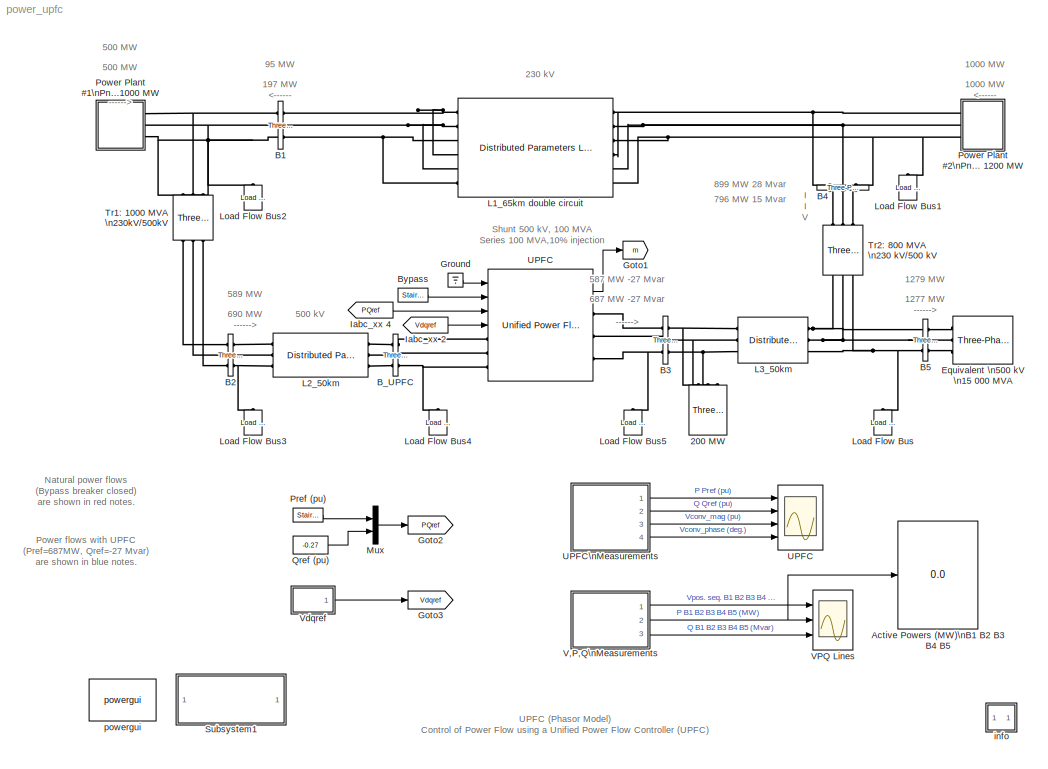
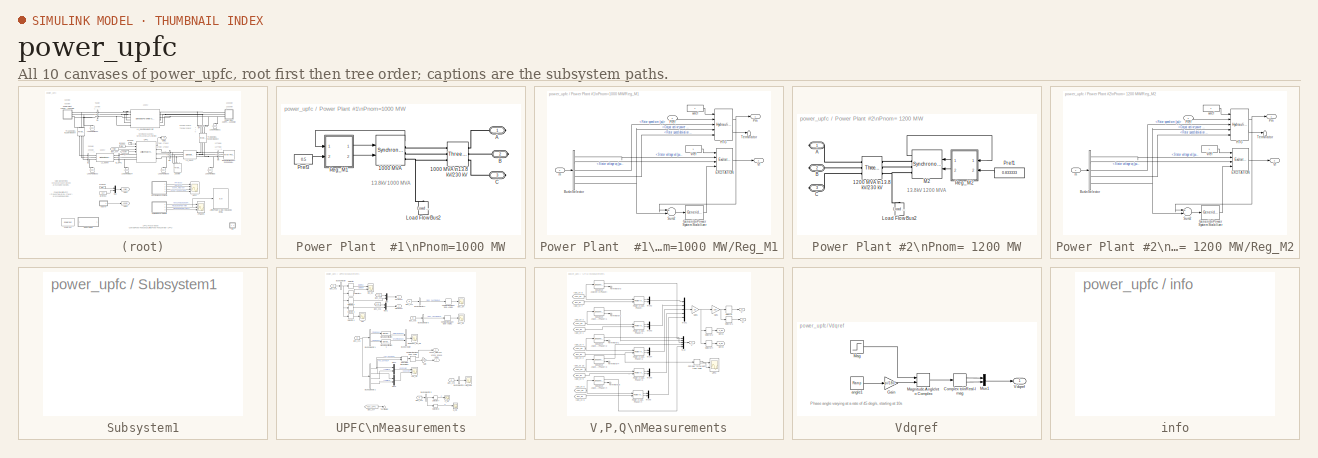
[diagram: thumbnail index - all 10 canvases of the model, root first then tree order]
MODEL power_upfc
KIND model
BLOCK [Reference] 200 MW  REF=powerlib/Elements/Three-Phase\nParallel RLC Load
  ActivePower = 2e+008
  AttributesFormatString = \\n
  CapacitivePower = 0
  Configuration = Y (grounded)
  InductivePower = 0
  LConnTagsString = A|B|C
  LoadType = constant Z
  Measurements = None
  NominalFrequency = 60
  NominalVoltage = 500e3
  Ports = [0, 0, 0, 0, 0, 3]
  SID = 1
  SourceBlock = powerlib/Elements/Three-Phase\nParallel RLC Load
  SourceType = Three-Phase Parallel RLC Load
BLOCK [Display] Active Powers (MW)\nB1 B2 B3 B4 B5
  Decimation = 1
  Ports = [1]
  SID = 2
  SampleTime = 0.1
BLOCK [Reference] B1  REF=powerlib/Measurements/Three-Phase\nV-I Measurement
  CurrentMeasurement = yes
  Ipu = on
  LabelI = Iabc_B1
  LabelV = Vabc_B1
  OutputType = Complex
  PSBequivalent = 0
  Pbase = 100e6
  PhasorSimulation = on
  Ports = [0, 0, 0, 0, 0, 3, 3]
  SID = 3
  SetLabelI = on
  SetLabelV = on
  SourceBlock = powerlib/Measurements/Three-Phase\nV-I Measurement
  SourceType = Three-Phase VI Measurement
  Vbase = 230e3
  VoltageMeasurement = phase-to-ground
  Vpu = on
  VpuLL = off
BLOCK [Reference] B2  REF=powerlib/Measurements/Three-Phase\nV-I Measurement
  CurrentMeasurement = yes
  Ipu = on
  LabelI = Iabc_B2
  LabelV = Vabc_B2
  OutputType = Complex
  PSBequivalent = 0
  Pbase = 100e6
  PhasorSimulation = on
  Ports = [0, 0, 0, 0, 0, 3, 3]
  SID = 4
  SetLabelI = on
  SetLabelV = on
  SourceBlock = powerlib/Measurements/Three-Phase\nV-I Measurement
  SourceType = Three-Phase VI Measurement
  Vbase = 500e3
  VoltageMeasurement = phase-to-ground
  Vpu = on
  VpuLL = off
BLOCK [Reference] B3  REF=powerlib/Measurements/Three-Phase\nV-I Measurement
  CurrentMeasurement = yes
  Ipu = on
  LabelI = Iabc_B3
  LabelV = Vabc_B3
  OutputType = Complex
  PSBequivalent = 0
  Pbase = 100e6
  PhasorSimulation = on
  Ports = [0, 0, 0, 0, 0, 3, 3]
  SID = 5
  SetLabelI = on
  SetLabelV = on
  SourceBlock = powerlib/Measurements/Three-Phase\nV-I Measurement
  SourceType = Three-Phase VI Measurement
  Vbase = 500e3
  VoltageMeasurement = phase-to-ground
  Vpu = on
  VpuLL = off
BLOCK [Reference] B4  REF=powerlib/Measurements/Three-Phase\nV-I Measurement
  CurrentMeasurement = yes
  Ipu = on
  LabelI = Iabc_B4
  LabelV = Vabc_B4
  OutputType = Complex
  PSBequivalent = 0
  Pbase = 100e6
  PhasorSimulation = on
  Ports = [0, 0, 0, 0, 0, 3, 3]
  SID = 6
  SetLabelI = on
  SetLabelV = on
  SourceBlock = powerlib/Measurements/Three-Phase\nV-I Measurement
  SourceType = Three-Phase VI Measurement
  Vbase = 230e3
  VoltageMeasurement = phase-to-ground
  Vpu = on
  VpuLL = off
BLOCK [Reference] B5  REF=powerlib/Measurements/Three-Phase\nV-I Measurement
  CurrentMeasurement = yes
  Ipu = on
  LabelI = Iabc_B5
  LabelV = Vabc_B5
  OutputType = Complex
  PSBequivalent = 0
  Pbase = 100e6
  PhasorSimulation = on
  Ports = [0, 0, 0, 0, 0, 3, 3]
  SID = 7
  SetLabelI = on
  SetLabelV = on
  SourceBlock = powerlib/Measurements/Three-Phase\nV-I Measurement
  SourceType = Three-Phase VI Measurement
  Vbase = 500e3
  VoltageMeasurement = phase-to-ground
  Vpu = on
  VpuLL = off
BLOCK [Reference] B_UPFC  REF=powerlib/Measurements/Three-Phase\nV-I Measurement
  CurrentMeasurement = no
  Ipu = on
  LabelI = Iabc_UPFC
  LabelV = Vabc_UPFC
  OutputType = Complex
  PSBequivalent = 0
  Pbase = 100e6
  PhasorSimulation = on
  Ports = [0, 0, 0, 0, 0, 3, 3]
  SID = 8
  SetLabelI = on
  SetLabelV = on
  SourceBlock = powerlib/Measurements/Three-Phase\nV-I Measurement
  SourceType = Three-Phase VI Measurement
  Vbase = 500e3
  VoltageMeasurement = phase-to-ground
  Vpu = on
  VpuLL = off
BLOCK [Reference] Bypass  REF=powerlib_meascontrol/Pulse & Signal\nGenerators/Stair\nGenerator
  Ports = [0, 1]
  SID = 218
  SourceBlock = powerlib_meascontrol/Pulse & Signal\nGenerators/Stair\nGenerator
  SourceType = Stair Generator
  Ts = 0
  e = [1, 0]
  t = [0,5]
BLOCK [Reference] Equivalent \n500 kV \n15 000 MVA  REF=powerlib/Electrical\nSources/Three-Phase Source
  BaseVoltage = 500e3
  BusType = swing
  Frequency = 60
  Inductance = 16.58e-3
  InternalConnection = Yg
  PhaseAngle = 3.2028e-005
  Ports = [0, 0, 0, 0, 0, 0, 3]
  Pref = 0
  Qmax = Inf
  Qmin = -Inf
  Qref = 0
  Resistance = 0.8929
  SID = 10
  ShortCircuitLevel = 15000e6
  SourceBlock = powerlib/Electrical\nSources/Three-Phase Source
  SourceType = Three-Phase Source
  SpecifyImpedance = on
  Voltage = (500000)*1
  XRratio = 10
BLOCK [Goto] Goto1
  GotoTag = m
  SID = 11
  TagVisibility = global
BLOCK [Goto] Goto2
  GotoTag = PQref
  SID = 12
BLOCK [Goto] Goto3
  GotoTag = Vdqref
  SID = 13
BLOCK [Ground] Ground
  SID = 14
BLOCK [From] Iabc_xx 2
  GotoTag = Vdqref
  SID = 15
BLOCK [From] Iabc_xx 4
  GotoTag = PQref
  SID = 16
BLOCK [Reference] L1_65km double circuit  REF=powerlib/Elements/Distributed Parameters Line
  AttributesFormatString = \\n
  Capacitance = [8.85e-9  6.21e-9  -1.88e-9]
  Frequency = 60
  I1 = ones(3,3)
  I2 = ones(3,3)
  Inductance = [1.31e-3  4.02e-3  2.43e-3]
  Length = 65
  Measurements = None
  Phases = 6
  Ports = [0, 0, 0, 0, 0, 6, 6]
  Resistance = [0.068  0.284  0.216]
  SID = 17
  SourceBlock = powerlib/Elements/Distributed Parameters Line
  SourceType = Distributed Parameters Line
  V1 = ones(3,3)
  V2 = ones(3,3)
  nHarmo = 1
  x1 = [1.04987199469285e-07 0 229205.80796604 229205.606293905 229205.80796604 229205.606293905;376.991118430775 376.991118430775 376.991118430775 376.991118430775 376.991118430775 376.991118430775;1.60854183298652 0 0.666699049272692 -0.904097686354923 0.666699049272692 -0.904097686354923]
  x2 = [6.52522329341896e-07 7.27595761418343e-12 228285.721081789 228285.608536952 228285.721081789 228285.608536952;376.991118430775 376.991118430775 376.991118430775 376.991118430775 376.991118430775 376.991118430775;1.99334329783026 -0.0878855142633377 0.697028223829494 -0.873768326941681 0.697028223829494 -0.873768326941681]
  x3 = [3.46977339890718e-09 9.30248222866475e-13 797.813028086103 797.813944366895 797.813028086104 797.813944366895;376.991118430775 376.991118430775 376.991118430775 376.991118430775 376.991118430775 376.991118430775;0.713863028790556 0.253093439233012 0.71113154759669 -0.859668364592689 0.71113154759669 -0.859668364592689]
  x4 = [3.27711624608603e-09 8.10443810681981e-13 388.164983704915 388.162721923639 388.164983704915 388.16272192364;376.991118430775 376.991118430775 376.991118430775 376.991118430775 376.991118430775 376.991118430775;-2.59754346741824 0.0169914244668962 0.493384723437739 -1.07740616674268 0.493384723437737 -1.07740616674268]
  x5 = 0.000343508242259192
BLOCK [Reference] L2_50km  REF=powerlib/Elements/Distributed Parameters Line
  AttributesFormatString = \\n
  Capacitance = [12.74e-9 7.751e-9]
  Frequency = 60
  I1 = ones(3,3)
  I2 = ones(3,3)
  Inductance = [0.9337e-3  4.1264e-3]
  Length = 50
  Measurements = None
  Phases = 3
  Ports = [0, 0, 0, 0, 0, 3, 3]
  Resistance = [0.01273*2 0.3864]
  SID = 18
  SourceBlock = powerlib/Elements/Distributed Parameters Line
  SourceType = Distributed Parameters Line
  V1 = ones(3,3)
  V2 = ones(3,3)
  nHarmo = 1
  x1 = [5.20853276713395e-08 499627.087562911 499626.799727799;376.991118430775 376.991118430775 376.991118430775;1.55035171690532 0.613862513789087 -0.956934116072279]
  x2 = [4.53565246682871e-08 499734.367587277 499734.166072354;376.991118430775 376.991118430775 376.991118430775;0.508276734166516 0.572208220004921 -0.998588334903276]
  x3 = [5.37095681221166e-10 675.32888932722 675.331629163871;376.991118430775 376.991118430775 376.991118430775;-2.03735480978532 0.425693420201668 -1.14510959351009]
  x4 = [6.51364168678501e-10 3011.82389463488 3011.82010569616;376.991118430775 376.991118430775 376.991118430775;1.09280353932366 0.590627024477705 -0.980167982447582]
  x5 = 0.000282770783497871
BLOCK [Reference] L3_50km  REF=powerlib/Elements/Distributed Parameters Line
  AttributesFormatString = \\n
  Capacitance = [12.74e-9 7.751e-9]
  Frequency = 60
  I1 = ones(3,3)
  I2 = ones(3,3)
  Inductance = [0.9337e-3  4.1264e-3]
  Length = 50
  Measurements = None
  Phases = 3
  Ports = [0, 0, 0, 0, 0, 3, 3]
  Resistance = [0.01273*2 0.3864]
  SID = 19
  SourceBlock = powerlib/Elements/Distributed Parameters Line
  SourceType = Distributed Parameters Line
  V1 = ones(3,3)
  V2 = ones(3,3)
  nHarmo = 1
  x1 = [4.54922196369805e-08 499734.250125523 499734.048610914;376.991118430775 376.991118430775 376.991118430775;0.506954071581508 0.572208208878681 -0.998588346030441]
  x2 = [7.60694684117164e-08 498857.669479026 498857.551895537;376.991118430775 376.991118430775 376.991118430775;-0.0702475012256047 0.544899092106288 -1.02589737598285]
  x3 = [5.13234018676451e-10 1067.88465961171 1067.8871249624;376.991118430775 376.991118430775 376.991118430775;-1.90562270617231 0.520240004579847 -1.0505607358324]
  x4 = [5.95962577824804e-10 2609.42085232127 2609.41725096603;376.991118430775 376.991118430775 376.991118430775;0.999199616559189 0.528387817683497 -1.04240695612209]
  x5 = 0.000282770783497871
BLOCK [Reference] Load Flow Bus  REF=powerlib/Measurements/Load Flow Bus
  AttributesFormatString = %<ID>\\n%<Vbase>V\\n%<VLF>pu\\n%<angleLF>deg.
  ID = B5
  LConnTagsString = a
  Ports = [0, 0, 0, 0, 0, 1]
  SID = 168
  SourceBlock = powerlib/Measurements/Load Flow Bus
  SourceType = Load Flow Bus
  VLF = 0.9977
  Vangle = 4.9453
  Vbase = 500e3
  Vref = 0.997715
  angleLF = 4.945
BLOCK [Reference] Load Flow Bus1  REF=powerlib/Measurements/Load Flow Bus
  AttributesFormatString = %<ID>\\n%<Vbase>V\\n%<VLF>pu\\n%<angleLF>deg.
  ID = B4
  LConnTagsString = a
  Ports = [0, 0, 0, 0, 0, 1]
  SID = 169
  SourceBlock = powerlib/Measurements/Load Flow Bus
  SourceType = Load Flow Bus
  VLF = 0.9925
  Vangle = 0
  Vbase = 230e3
  Vref = 1
  angleLF = 14.72
BLOCK [Reference] Load Flow Bus2  REF=powerlib/Measurements/Load Flow Bus
  AttributesFormatString = %<ID>\\n%<Vbase>V\\n%<VLF>pu\\n%<angleLF>deg.
  ID = B1
  LConnTagsString = a
  Ports = [0, 0, 0, 0, 0, 1]
  SID = 170
  SourceBlock = powerlib/Measurements/Load Flow Bus
  SourceType = Load Flow Bus
  VLF = 0.9965
  Vangle = 0
  Vbase = 230e3
  Vref = 1
  angleLF = 12.98
BLOCK [Reference] Load Flow Bus3  REF=powerlib/Measurements/Load Flow Bus
  AttributesFormatString = %<ID>\\n%<Vbase>V\\n%<VLF>pu\\n%<angleLF>deg.
  ID = B2
  LConnTagsString = a
  Ports = [0, 0, 0, 0, 0, 1]
  SID = 171
  SourceBlock = powerlib/Measurements/Load Flow Bus
  SourceType = Load Flow Bus
  VLF = 0.9993
  Vangle = 0
  Vbase = 500e3
  Vref = 1
  angleLF = 8.897
BLOCK [Reference] Load Flow Bus4  REF=powerlib/Measurements/Load Flow Bus
  AttributesFormatString = %<ID>\\n%<Vbase>V\\n%<VLF>pu\\n%<angleLF>deg.
  ID = B_UPFC
  LConnTagsString = a
  Ports = [0, 0, 0, 0, 0, 1]
  SID = 172
  SourceBlock = powerlib/Measurements/Load Flow Bus
  SourceType = Load Flow Bus
  VLF = 0.9995
  Vangle = 0
  Vbase = 500e3
  Vref = 1
  angleLF = 6.51
BLOCK [Reference] Load Flow Bus5  REF=powerlib/Measurements/Load Flow Bus
  AttributesFormatString = %<ID>\\n%<Vbase>V\\n%<VLF>pu\\n%<angleLF>deg.
  ID = B3
  LConnTagsString = a
  Ports = [0, 0, 0, 0, 0, 1]
  SID = 173
  SourceBlock = powerlib/Measurements/Load Flow Bus
  SourceType = Load Flow Bus
  VLF = 0.9995
  Vangle = 0
  Vbase = 500e3
  Vref = 1
  angleLF = 6.51
BLOCK [Mux] Mux
  DisplayOption = bar
  Inputs = 2
  Ports = [2, 1]
  SID = 20
BLOCK [SubSystem] Power Plant  #1\nPnom=1000 MW
  Ports = [0, 0, 0, 0, 0, 0, 3]
  RequestExecContextInheritance = off
  SID = 21
BLOCK [Reference] Power Plant  #1\nPnom=1000 MW/1000 MVA  REF=powerlib/Machines/Synchronous Machine\npu Standard
  AttributesFormatString = \\n\\n
  BusType = PV
  InitialConditions = [0 -90.4528 0.500842 0.500842 0.500842 -16.9126 -136.913 103.087 1.1604]
  IterativeModel = Forward Euler
  LoadFlowParameters = [1 500000000 0 0 0]
  MeasurementBus = off
  Mechanical = [ 3.7 0  32]
  MechanicalLoad = Mechanical power Pm
  NominalParameters = [1000E6  13800   60 ]
  PLF = 0
  PolePairs = 32
  Ports = [2, 1, 0, 0, 0, 0, 3]
  Pref = 5e+008
  PresetModel = No
  QLF = 0
  Qmax = Inf
  Qmin = -Inf
  Qref = 0
  Reactances1 = [ 31 32 33 34 35 36 37 ]
  Reactances2 = [ 1.305, 0.296, 0.252, 0.474, 0.243, 0.18 ]
  RotorType = Salient-pole
  SID = 22
  Saturation = [0.6404,0.7127,0.8441,0.9214,0.9956,1.082,1.19,1.316,1.457;0.7,0.7698,0.8872,0.9466,0.9969,1.046,1.1,1.151,1.201]
  SetSaturation = off
  ShowDetailedParameters = on
  SourceBlock = powerlib/Machines/Synchronous Machine\npu Standard
  SourceType = Synchronous Machine
  StatorResistance = 2.8544e-3
  TimeConstants1 = []
  TimeConstants2 = []
  TimeConstants3 = []
  TimeConstants4 = []
  TimeConstants5 = [ 1.01, 0.053, 0.1 ]
  TimeConstants6 = []
  TimeConstants7 = []
  TimeConstants8 = []
  TsBlock = -1
  TsPowergui = 0
  Units = per unit standard parameters
  dAxisTimeConstants = Short-circuit
  qAxisTimeConstants = Open-circuit
BLOCK [Reference] Power Plant  #1\nPnom=1000 MW/1000 MVA \n13.8 kV//230 kV  REF=powerlib/Elements/Three-Phase\nTransformer\n(Two Windings)
  AttributesFormatString = \\n
  BreakLoop = off
  DataFile = 'basic_model'
  DataType = off
  Hysteresis = off
  InitialFluxes = [ 0.8 , -0.8 , 0.7 ]
  Lm = 500
  Measurements = None
  MoreParameters = off
  NominalPower = [ 1000e6 60 ]
  Ports = [0, 0, 0, 0, 0, 3, 3]
  Rm = 500
  SID = 23
  Saturation = [ 0,0  ;  0.005,1.2  ;  1.0,1.4 ]
  SetInitialFlux = off
  SetSaturation = off
  SourceBlock = powerlib/Elements/Three-Phase\nTransformer\n(Two Windings)
  SourceType = Three-Phase Transformer (Two Windings)
  TransfoNumber = 0
  UNITS = pu
  Winding1 = [ 13.8e3 0.002  0.0]
  Winding1Connection = Delta (D1)
  Winding2 = [ 230e3 0.002 0.12]
  Winding2Connection = Yg
BLOCK [PMIOPort] Power Plant  #1\nPnom=1000 MW/A
  Port = 1
  SID = 38
  Side = Right
BLOCK [PMIOPort] Power Plant  #1\nPnom=1000 MW/B
  Port = 2
  SID = 39
  Side = Right
BLOCK [PMIOPort] Power Plant  #1\nPnom=1000 MW/C
  Port = 3
  SID = 40
  Side = Right
BLOCK [Reference] Power Plant  #1\nPnom=1000 MW/Load Flow Bus2  REF=powerlib/Measurements/Load Flow Bus
  AttributesFormatString = %<ID>\\n%<Vbase>V\\n%<VLF>pu\\n%<angleLF>deg.
  ID = M1
  LConnTagsString = a
  Ports = [0, 0, 0, 0, 0, 1]
  SID = 174
  SourceBlock = powerlib/Measurements/Load Flow Bus
  SourceType = Load Flow Bus
  VLF = 1
  Vangle = 0
  Vbase = 13.8e3
  Vref = 1
  angleLF = -13.59
BLOCK [Constant] Power Plant  #1\nPnom=1000 MW/Pref3
  SID = 24
  Value = 0.5
BLOCK [SubSystem] Power Plant  #1\nPnom=1000 MW/Reg_M1
  Ports = [2, 2]
  RequestExecContextInheritance = off
  SID = 25
BLOCK [BusSelector] Power Plant  #1\nPnom=1000 MW/Reg_M1/Bus\nSelector
  OutputSignals = dq0 components.Stator voltage  vd (pu),dq0 components.Stator voltage  vq (pu),Mechanical.Rotor speed  wm  (pu),Mechanical.Rotor speed deviation  dw (pu),Output active power   Peo (pu)
  Ports = [1, 5]
  SID = 28
BLOCK [Reference] Power Plant  #1\nPnom=1000 MW/Reg_M1/EXCITATION  REF=sps_avr/Excitation System
  Ports = [4, 1]
  SID = 29
  SourceBlock = sps_avr/Excitation System
  SourceType = Excitation System
  damp = [ 0.001, 0.1 ]
  exc = [ 1, 0 ]
  lim = [ 0,  7, 0 ]
  reg = [ 200, 0.001 ]
  sat = [ 0, 0 ]
  tgr = [ 0, 0 ]
  tr = 20e-3
  v0 = [1,1.1604]
BLOCK [Reference] Power Plant  #1\nPnom=1000 MW/Reg_M1/Generic\nPower System Stabilizer  REF=powerlib/Machines/Generic\nPower System Stabilizer
  FreqRange = logspace(-2,2,500)
  K = 2.5
  MagdB_On = on
  Plot_On = off
  Ports = [1, 1]
  SID = 30
  SourceBlock = powerlib/Machines/Generic\nPower System Stabilizer
  SourceType = Generic Power System Stabilizer
  Tleadlag1 = [0.06  1]
  Tleadlag2 = [0  0]
  Tsensor = 15e-3
  Twashout = 1
  VSlimits = [-0.15 0.15]
  Vinit = 0
BLOCK [Reference] Power Plant  #1\nPnom=1000 MW/Reg_M1/HTG  REF=powerlib/Machines/Hydraulic Turbine\nand Governor
  Ports = [5, 2]
  SID = 31
  SourceBlock = powerlib/Machines/Hydraulic Turbine\nand Governor
  SourceType = Hydraulic Turbine and Governor
  dref = 0
  gate = [  0.01  0.97518  -0.1  0.1 ]
  hyd = [  0  2.67  ]
  po = 0.500716
  reg = [  0.05  1.163  0.105  0  0.01  ]
  sm = [ 10/3  0.07 ]
BLOCK [Outport] Power Plant  #1\nPnom=1000 MW/Reg_M1/Pm
  IconDisplay = Port number
  InitialOutput = 0
  SID = 36
BLOCK [Inport] Power Plant  #1\nPnom=1000 MW/Reg_M1/Pref
  IconDisplay = Port number
  Port = 2
  SID = 27
BLOCK [Sum] Power Plant  #1\nPnom=1000 MW/Reg_M1/Sum2
  Inputs = +-
  Ports = [2, 1]
  SID = 32
BLOCK [Terminator] Power Plant  #1\nPnom=1000 MW/Reg_M1/Terminator
  SID = 33
BLOCK [Outport] Power Plant  #1\nPnom=1000 MW/Reg_M1/Vf
  IconDisplay = Port number
  InitialOutput = 0
  Port = 2
  SID = 37
BLOCK [Constant] Power Plant  #1\nPnom=1000 MW/Reg_M1/Vref
  SID = 34
BLOCK [Inport] Power Plant  #1\nPnom=1000 MW/Reg_M1/m
  IconDisplay = Port number
  SID = 26
BLOCK [Constant] Power Plant  #1\nPnom=1000 MW/Reg_M1/wref
  SID = 35
BLOCK [SubSystem] Power Plant #2\nPnom= 1200 MW
  Ports = [0, 0, 0, 0, 0, 0, 3]
  RequestExecContextInheritance = off
  SID = 41
BLOCK [Reference] Power Plant #2\nPnom= 1200 MW/1200 MVA \n13.8 kV//230 kV  REF=powerlib/Elements/Three-Phase\nTransformer\n(Two Windings)
  AttributesFormatString = \\n
  BreakLoop = off
  DataFile = 'basic_model'
  DataType = off
  Hysteresis = off
  InitialFluxes = [ 0.8 , -0.8 , 0.7 ]
  Lm = 500
  Measurements = None
  MoreParameters = off
  NominalPower = [ 1200e6 60 ]
  Ports = [0, 0, 0, 0, 0, 3, 3]
  Rm = 500
  SID = 42
  Saturation = [ 0,0  ;  0.005,1.2  ;  1.0,1.4 ]
  SetInitialFlux = off
  SetSaturation = off
  SourceBlock = powerlib/Elements/Three-Phase\nTransformer\n(Two Windings)
  SourceType = Three-Phase Transformer (Two Windings)
  TransfoNumber = 0
  UNITS = pu
  Winding1 = [ 13.8e3 0.002  0.0]
  Winding1Connection = Delta (D1)
  Winding2 = [ 230e3 0.002 0.12]
  Winding2Connection = Yg
BLOCK [PMIOPort] Power Plant #2\nPnom= 1200 MW/A
  Port = 1
  SID = 58
  Side = Right
BLOCK [PMIOPort] Power Plant #2\nPnom= 1200 MW/B
  Port = 2
  SID = 59
  Side = Right
BLOCK [PMIOPort] Power Plant #2\nPnom= 1200 MW/C
  Port = 3
  SID = 60
  Side = Right
BLOCK [Reference] Power Plant #2\nPnom= 1200 MW/Load Flow Bus2  REF=powerlib/Measurements/Load Flow Bus
  AttributesFormatString = %<ID>\\n%<Vbase>V\\n%<VLF>pu\\n%<angleLF>deg.
  ID = M2
  LConnTagsString = a
  Ports = [0, 0, 0, 0, 0, 1]
  SID = 175
  SourceBlock = powerlib/Measurements/Load Flow Bus
  SourceType = Load Flow Bus
  VLF = 1
  Vangle = 0
  Vbase = 13.8e3
  Vref = 1
  angleLF = -9.532
BLOCK [Reference] Power Plant #2\nPnom= 1200 MW/M2  REF=powerlib/Machines/Synchronous Machine\npu Standard
  AttributesFormatString = \\n\\n
  BusType = PV
  InitialConditions = [0 -78.7337 0.836975 0.836975 0.836975 -14.879 -134.879 105.121 1.41828]
  IterativeModel = Forward Euler
  LoadFlowParameters = [1 1000000000 0 0 0]
  MeasurementBus = off
  Mechanical = [ 3.7 0  32]
  MechanicalLoad = Mechanical power Pm
  NominalParameters = [1200E6  13800   60 ]
  PLF = 0
  PolePairs = 32
  Ports = [2, 1, 0, 0, 0, 0, 3]
  Pref = 1e+009
  PresetModel = No
  QLF = 0
  Qmax = Inf
  Qmin = -Inf
  Qref = 0
  Reactances1 = [ 31 32 33 34 35 36 37 ]
  Reactances2 = [ 1.305, 0.296, 0.252, 0.474, 0.243, 0.18 ]
  RotorType = Salient-pole
  SID = 43
  Saturation = [0.6404,0.7127,0.8441,0.9214,0.9956,1.082,1.19,1.316,1.457;0.7,0.7698,0.8872,0.9466,0.9969,1.046,1.1,1.151,1.201]
  SetSaturation = off
  ShowDetailedParameters = on
  SourceBlock = powerlib/Machines/Synchronous Machine\npu Standard
  SourceType = Synchronous Machine
  StatorResistance = 2.8544e-3
  TimeConstants1 = []
  TimeConstants2 = []
  TimeConstants3 = []
  TimeConstants4 = []
  TimeConstants5 = [ 1.01, 0.053, 0.1 ]
  TimeConstants6 = []
  TimeConstants7 = []
  TimeConstants8 = []
  TsBlock = -1
  TsPowergui = 0
  Units = per unit standard parameters
  dAxisTimeConstants = Short-circuit
  qAxisTimeConstants = Open-circuit
BLOCK [Constant] Power Plant #2\nPnom= 1200 MW/Pref1
  SID = 44
  Value = 0.833333
BLOCK [SubSystem] Power Plant #2\nPnom= 1200 MW/Reg_M2
  Ports = [2, 2]
  RequestExecContextInheritance = off
  SID = 45
BLOCK [BusSelector] Power Plant #2\nPnom= 1200 MW/Reg_M2/Bus\nSelector
  OutputSignals = dq0 components.Stator voltage  vd (pu),dq0 components.Stator voltage  vq (pu),Mechanical.Rotor speed  wm  (pu),Mechanical.Rotor speed deviation  dw (pu),Output active power   Peo (pu)
  Ports = [1, 5]
  SID = 48
BLOCK [Reference] Power Plant #2\nPnom= 1200 MW/Reg_M2/EXCITATION  REF=sps_avr/Excitation System
  Ports = [4, 1]
  SID = 49
  SourceBlock = sps_avr/Excitation System
  SourceType = Excitation System
  damp = [ 0.001, 0.1 ]
  exc = [ 1, 0 ]
  lim = [ 0,  7, 0 ]
  reg = [ 200, 0.001 ]
  sat = [ 0, 0 ]
  tgr = [ 0, 0 ]
  tr = 20e-3
  v0 = [1,1.41828]
BLOCK [Reference] Power Plant #2\nPnom= 1200 MW/Reg_M2/Generic\nPower System Stabilizer  REF=powerlib/Machines/Generic\nPower System Stabilizer
  FreqRange = logspace(-2,2,500)
  K = 2.5
  MagdB_On = on
  Plot_On = off
  Ports = [1, 1]
  SID = 50
  SourceBlock = powerlib/Machines/Generic\nPower System Stabilizer
  SourceType = Generic Power System Stabilizer
  Tleadlag1 = [0.06  1]
  Tleadlag2 = [0  0]
  Tsensor = 15e-3
  Twashout = 1
  VSlimits = [-0.15 0.15]
  Vinit = 0
BLOCK [Reference] Power Plant #2\nPnom= 1200 MW/Reg_M2/HTG  REF=powerlib/Machines/Hydraulic Turbine\nand Governor
  Ports = [5, 2]
  SID = 51
  SourceBlock = powerlib/Machines/Hydraulic Turbine\nand Governor
  SourceType = Hydraulic Turbine and Governor
  dref = 0
  gate = [  0.01  0.97518  -0.1  0.1 ]
  hyd = [  0  2.67  ]
  po = 0.835333
  reg = [  0.05  1.163  0.105  0  0.01  ]
  sm = [ 10/3  0.07 ]
BLOCK [Outport] Power Plant #2\nPnom= 1200 MW/Reg_M2/Pm
  IconDisplay = Port number
  InitialOutput = 0
  SID = 56
BLOCK [Inport] Power Plant #2\nPnom= 1200 MW/Reg_M2/Pref
  IconDisplay = Port number
  Port = 2
  SID = 47
BLOCK [Sum] Power Plant #2\nPnom= 1200 MW/Reg_M2/Sum2
  Inputs = +-
  Ports = [2, 1]
  SID = 52
BLOCK [Terminator] Power Plant #2\nPnom= 1200 MW/Reg_M2/Terminator
  SID = 53
BLOCK [Outport] Power Plant #2\nPnom= 1200 MW/Reg_M2/Vf
  IconDisplay = Port number
  InitialOutput = 0
  Port = 2
  SID = 57
BLOCK [Constant] Power Plant #2\nPnom= 1200 MW/Reg_M2/Vref
  SID = 54
BLOCK [Inport] Power Plant #2\nPnom= 1200 MW/Reg_M2/m
  IconDisplay = Port number
  SID = 46
BLOCK [Constant] Power Plant #2\nPnom= 1200 MW/Reg_M2/wref
  SID = 55
BLOCK [Reference] Pref (pu)  REF=powerlib_meascontrol/Pulse & Signal\nGenerators/Stair\nGenerator
  Ports = [0, 1]
  SID = 219
  SourceBlock = powerlib_meascontrol/Pulse & Signal\nGenerators/Stair\nGenerator
  SourceType = Stair Generator
  Ts = 0
  e = [5.87 6.87  ]
  t = [0,10]
BLOCK [Constant] Qref (pu)
  SID = 62
  Value = -0.27
BLOCK [SubSystem] Subsystem1
  OpenFcn = if exist('P_SE') & exist('Q_SE')                     \nplot(P_SE(300:length(Q_SE),2),Q_SE(300:length(Q_SE),2))\npbaspect([1 1 1]);                                     \n   grid                                                \ntitle('UPFC Controllable Region')                      \nxlabel ('P (pu)')                                      \nylabel ('Q (pu)')                                      \nend...<+225ch>
  Ports = []
  RequestExecContextInheritance = off
  SID = 63
BLOCK [Reference] Tr1: 1000 MVA \n230kV//500kV  REF=powerlib/Elements/Three-Phase\nTransformer\n(Two Windings)
  AttributesFormatString = \\n
  BreakLoop = off
  DataFile = 'basic_model'
  DataType = off
  Hysteresis = off
  InitialFluxes = [ 0.8 , -0.8 , 0.7 ]
  Lm = 500
  Measurements = None
  MoreParameters = off
  NominalPower = [ 1000e6 60 ]
  Ports = [0, 0, 0, 0, 0, 3, 3]
  Rm = 500
  SID = 64
  Saturation = [ 0,0  ;  0.005,1.2  ;  1.0,1.4 ]
  SetInitialFlux = off
  SetSaturation = off
  SourceBlock = powerlib/Elements/Three-Phase\nTransformer\n(Two Windings)
  SourceType = Three-Phase Transformer (Two Windings)
  TransfoNumber = 0
  UNITS = pu
  Winding1 = [ 230e3 0.002  0.0]
  Winding1Connection = Yg
  Winding2 = [ 500e3 0.002 0.12]
  Winding2Connection = Yg
BLOCK [Reference] Tr2: 800 MVA \n230 kV//500 kV  REF=powerlib/Elements/Three-Phase\nTransformer\n(Two Windings)
  AttributesFormatString = \\n
  BreakLoop = off
  DataFile = 'basic_model'
  DataType = off
  Hysteresis = off
  InitialFluxes = [ 0.8 , -0.8 , 0.7 ]
  Lm = 500
  Measurements = None
  MoreParameters = off
  NominalPower = [ 800e6 60 ]
  Ports = [0, 0, 0, 0, 0, 3, 3]
  Rm = 500
  SID = 65
  Saturation = [ 0,0  ;  0.005,1.2  ;  1.0,1.4 ]
  SetInitialFlux = off
  SetSaturation = off
  SourceBlock = powerlib/Elements/Three-Phase\nTransformer\n(Two Windings)
  SourceType = Three-Phase Transformer (Two Windings)
  TransfoNumber = 0
  UNITS = pu
  Winding1 = [ 230e3 0.002  0.0]
  Winding1Connection = Yg
  Winding2 = [ 500e3 0.002 0.15]
  Winding2Connection = Yg
BLOCK [Reference] UPFC  REF=factslib/Power-Electronics Based\nFACTS/Unified Power Flow\nController\n(Phasor Type)
  C_DC = 750e-6
  Droop_SH = 0.03
  ExternalByPass = External control
  ExternalPQref = on
  ExternalVdqref = on
  ExternalVref = off
  Iinit_SE = [ 0 0]
  Iinit_SH = [0, 0 ]
  MaxRateChangeQref_SH = 2
  MaxRateChangeVref_SH = 0.1
  OpMode_SE = Power flow control
  OpMode_SH = Voltage regulation
  PQref_SE = [5.87 -0.27]
  Par_IReg_SH = [0.5 25]/3
  Par_PReg_SE = [0.025 1.5]
  Par_VacReg = [5 1000]
  Par_VdcReg = [0.1e-3 20e-3]
  Pnom_SH = 100e6
  Ports = [4, 1, 0, 0, 0, 3, 3]
  Qref_SH = 0
  RL_SE = [ 0.16/30, 0.16 ]
  RL_SH = [ 0.22/30, 0.22 ]
  Rate_PQref = 1
  Rate_Vdqref = 0.2
  SID = 66
  SeriesNominal = [ 100e6, 0.1]
  ShowParameters = Control parameters (series converter)
  SourceBlock = factslib/Power-Electronics Based\nFACTS/Unified Power Flow\nController\n(Phasor Type)
  SourceType = Unified Power Flow Controller (Phasor Type)
  SystemNominal = [ 500e3, 60 ]
  Vdqref_SE = [0.05 0.05]
  VnomDC = 40000
  Vref_SH = 1.00
BLOCK [Scope] UPFC 
  DataFormat = StructureWithTime
  Floating = off
  LimitDataPoints = off
  NumInputPorts = 4
  Ports = [4]
  SID = 115
  SampleTime = 0
  ShowLegends = off
  TimeRange = 20
  YMax = 7~-0.26~0.1~96
  YMin = 5.5~-0.29~0~90
  ZoomMode = yonly
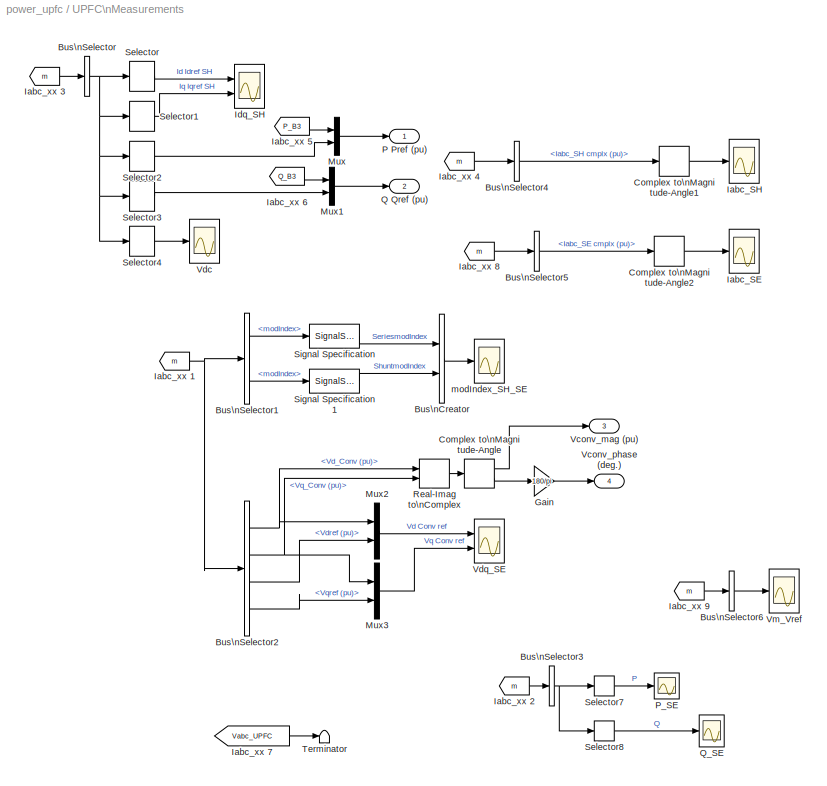
BLOCK [SubSystem] UPFC\nMeasurements
  Ports = [0, 4]
  RequestExecContextInheritance = off
  SID = 67
BLOCK [BusCreator] UPFC\nMeasurements/Bus\nCreator
  DisplayOption = bar
  Inputs = 2
  Ports = [2, 1]
  SID = 68
BLOCK [BusSelector] UPFC\nMeasurements/Bus\nSelector
  OutputAsBus = on
  OutputSignals = Control (Shunt).Id (pu),Control (Shunt).Iq (pu),Control (Shunt).Idref (pu),Control (Shunt).Iqref (pu),Control (Series).P (pu),Control (Series).Q (pu),Control (Series).Pref (pu),Control (Series).Qref (pu),Power.Vdc (V)
  Ports = [1, 1]
  SID = 69
BLOCK [BusSelector] UPFC\nMeasurements/Bus\nSelector1
  OutputSignals = Control (Shunt).modIndex,Control (Series).modIndex
  Ports = [1, 2]
  SID = 70
BLOCK [BusSelector] UPFC\nMeasurements/Bus\nSelector2
  OutputSignals = Control (Series).Vd_Conv (pu),Control (Series).Vq_Conv (pu),Control (Series).Vdref (pu),Control (Series).Vqref (pu)
  Ports = [1, 4]
  SID = 71
BLOCK [BusSelector] UPFC\nMeasurements/Bus\nSelector3
  OutputAsBus = on
  OutputSignals = Control (Series).P (pu),Control (Series).Pref (pu),Control (Series).Q (pu),Control (Series).Qref (pu)
  Ports = [1, 1]
  SID = 72
BLOCK [BusSelector] UPFC\nMeasurements/Bus\nSelector4
  OutputSignals = Power.Iabc_SH cmplx (pu)
  Ports = [1, 1]
  SID = 73
BLOCK [BusSelector] UPFC\nMeasurements/Bus\nSelector5
  OutputSignals = Power.Iabc_SE cmplx (pu)
  Ports = [1, 1]
  SID = 74
BLOCK [BusSelector] UPFC\nMeasurements/Bus\nSelector6
  OutputAsBus = on
  OutputSignals = Control (Shunt).Vm (pu),Control (Shunt).Vref (pu)
  Ports = [1, 1]
  SID = 75
BLOCK [ComplexToMagnitudeAngle] UPFC\nMeasurements/Complex to\nMagnitude-Angle
  Ports = [1, 2]
  SID = 76
BLOCK [ComplexToMagnitudeAngle] UPFC\nMeasurements/Complex to\nMagnitude-Angle1
  Output = Magnitude
  Ports = [1, 1]
  SID = 77
BLOCK [ComplexToMagnitudeAngle] UPFC\nMeasurements/Complex to\nMagnitude-Angle2
  Output = Magnitude
  Ports = [1, 1]
  SID = 78
BLOCK [Gain] UPFC\nMeasurements/Gain
  Gain = 180/pi
  SID = 79
BLOCK [Scope] UPFC\nMeasurements/Iabc_SE
  DataFormat = StructureWithTime
  Floating = off
  LimitDataPoints = off
  NumInputPorts = 1
  Ports = [1]
  SID = 80
  SampleTime = 0
  SaveName = ScopeData8
  ShowLegends = off
  YMax = 6.9
  YMin = 4.8
  ZoomMode = xonly
BLOCK [Scope] UPFC\nMeasurements/Iabc_SH
  DataFormat = StructureWithTime
  Floating = off
  LimitDataPoints = off
  NumInputPorts = 1
  Ports = [1]
  SID = 81
  SampleTime = 0
  SaveName = ScopeData5
  ShowLegends = off
  YMax = 0.004
  YMin = 0
  ZoomMode = xonly
BLOCK [From] UPFC\nMeasurements/Iabc_xx 1
  GotoTag = m
  SID = 82
  TagVisibility = global
BLOCK [From] UPFC\nMeasurements/Iabc_xx 2
  GotoTag = m
  SID = 83
  TagVisibility = global
BLOCK [From] UPFC\nMeasurements/Iabc_xx 3
  GotoTag = m
  SID = 84
  TagVisibility = global
BLOCK [From] UPFC\nMeasurements/Iabc_xx 4
  GotoTag = m
  SID = 85
  TagVisibility = global
BLOCK [From] UPFC\nMeasurements/Iabc_xx 5
  GotoTag = P_B3
  SID = 86
  TagVisibility = global
BLOCK [From] UPFC\nMeasurements/Iabc_xx 6
  GotoTag = Q_B3
  SID = 87
  TagVisibility = global
BLOCK [From] UPFC\nMeasurements/Iabc_xx 7
  GotoTag = Vabc_UPFC
  SID = 88
  TagVisibility = global
BLOCK [From] UPFC\nMeasurements/Iabc_xx 8
  GotoTag = m
  SID = 89
  TagVisibility = global
BLOCK [From] UPFC\nMeasurements/Iabc_xx 9
  GotoTag = m
  SID = 90
  TagVisibility = global
BLOCK [Scope] UPFC\nMeasurements/Idq_SH
  DataFormat = StructureWithTime
  Floating = off
  LimitDataPoints = off
  NumInputPorts = 2
  Ports = [2]
  SID = 91
  SampleTime = 0
  SaveName = ScopeData1
  ShowLegends = off
  YMax = 1~1
  YMin = -1~-1
  ZoomMode = xonly
BLOCK [Mux] UPFC\nMeasurements/Mux
  DisplayOption = bar
  Inputs = 2
  Ports = [2, 1]
  SID = 92
BLOCK [Mux] UPFC\nMeasurements/Mux1
  DisplayOption = bar
  Inputs = 2
  Ports = [2, 1]
  SID = 93
BLOCK [Mux] UPFC\nMeasurements/Mux2
  DisplayOption = bar
  Inputs = 2
  Ports = [2, 1]
  SID = 94
BLOCK [Mux] UPFC\nMeasurements/Mux3
  DisplayOption = bar
  Inputs = 2
  Ports = [2, 1]
  SID = 95
BLOCK [Outport] UPFC\nMeasurements/P Pref (pu)
  IconDisplay = Port number
  SID = 111
BLOCK [Scope] UPFC\nMeasurements/P_SE
  Floating = off
  LimitDataPoints = off
  NumInputPorts = 1
  Ports = [1]
  SID = 96
  SampleTime = 1/60
  SaveName = P_SE
  SaveToWorkspace = on
  ShowLegends = off
  YMax = 10
  YMin = 1
  ZoomMode = yonly
BLOCK [Outport] UPFC\nMeasurements/Q Qref (pu)
  IconDisplay = Port number
  Port = 2
  SID = 112
BLOCK [Scope] UPFC\nMeasurements/Q_SE
  Floating = off
  LimitDataPoints = off
  NumInputPorts = 1
  Ports = [1]
  SID = 97
  SampleTime = 1/60
  SaveName = Q_SE
  SaveToWorkspace = on
  ShowLegends = off
  YMax = 10
  YMin = 1
  ZoomMode = yonly
BLOCK [RealImagToComplex] UPFC\nMeasurements/Real-Imag to\nComplex
  Ports = [2, 1]
  SID = 98
BLOCK [Selector] UPFC\nMeasurements/Selector
  Indices = [1 3]
  InputPortWidth = 9
  Ports = [1, 1]
  SID = 99
BLOCK [Selector] UPFC\nMeasurements/Selector1
  Indices = [1 3]+1
  InputPortWidth = 9
  Ports = [1, 1]
  SID = 100
BLOCK [Selector] UPFC\nMeasurements/Selector2
  Indices = [7]
  InputPortWidth = 9
  Ports = [1, 1]
  SID = 101
BLOCK [Selector] UPFC\nMeasurements/Selector3
  Indices = [8]
  InputPortWidth = 9
  Ports = [1, 1]
  SID = 102
BLOCK [Selector] UPFC\nMeasurements/Selector4
  Indices = 9
  InputPortWidth = 9
  Ports = [1, 1]
  SID = 103
BLOCK [Selector] UPFC\nMeasurements/Selector7
  Indices = [1 2]
  InputPortWidth = 4
  Ports = [1, 1]
  SID = 104
BLOCK [Selector] UPFC\nMeasurements/Selector8
  Indices = [1 2]+2
  InputPortWidth = 4
  Ports = [1, 1]
  SID = 105
BLOCK [SignalSpecification] UPFC\nMeasurements/Signal Specification
  SID = 201
BLOCK [SignalSpecification] UPFC\nMeasurements/Signal Specification1
  SID = 202
BLOCK [Terminator] UPFC\nMeasurements/Terminator
  SID = 106
BLOCK [Outport] UPFC\nMeasurements/Vconv_mag (pu)
  IconDisplay = Port number
  Port = 3
  SID = 113
BLOCK [Outport] UPFC\nMeasurements/Vconv_phase (deg.)
  IconDisplay = Port number
  Port = 4
  SID = 114
BLOCK [Scope] UPFC\nMeasurements/Vdc
  DataFormat = StructureWithTime
  Floating = off
  LimitDataPoints = off
  NumInputPorts = 1
  Ports = [1]
  SID = 107
  SampleTime = 0
  SaveName = ScopeData3
  ShowLegends = off
  YMax = 40100
  YMin = 38100
  ZoomMode = xonly
BLOCK [Scope] UPFC\nMeasurements/Vdq_SE
  DataFormat = StructureWithTime
  Floating = off
  LimitDataPoints = off
  NumInputPorts = 2
  Ports = [2]
  SID = 108
  SampleTime = 0
  SaveName = ScopeData2
  ShowLegends = off
  YMax = 0.125~0.125
  YMin = -0.125~-0.125
  ZoomMode = xonly
BLOCK [Scope] UPFC\nMeasurements/Vm_Vref
  DataFormat = StructureWithTime
  Floating = off
  LimitDataPoints = off
  NumInputPorts = 1
  Ports = [1]
  SID = 109
  SampleTime = 0
  SaveName = ScopeData7
  ShowLegends = off
  YMax = 1.5
  YMin = 0.5
  ZoomMode = yonly
BLOCK [Scope] UPFC\nMeasurements/modIndex_SH_SE
  DataFormat = StructureWithTime
  Floating = off
  LimitDataPoints = off
  NumInputPorts = 1
  Ports = [1]
  SID = 110
  SampleTime = 0
  SaveName = ScopeData11
  ShowLegends = off
  YMax = 0.75
  YMin = 0
  ZoomMode = xonly
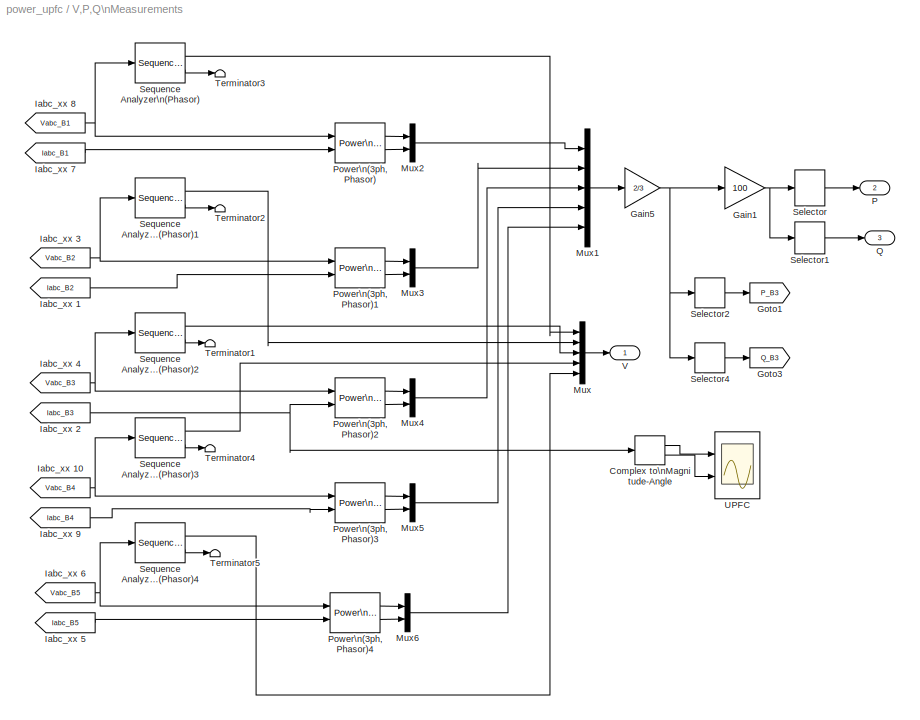
BLOCK [SubSystem] V,P,Q\nMeasurements
  Ports = [0, 3]
  RequestExecContextInheritance = off
  SID = 116
BLOCK [ComplexToMagnitudeAngle] V,P,Q\nMeasurements/Complex to\nMagnitude-Angle
  Ports = [1, 2]
  SID = 122
BLOCK [Gain] V,P,Q\nMeasurements/Gain1
  Gain = 100
  SID = 123
BLOCK [Gain] V,P,Q\nMeasurements/Gain5
  Gain = 2/3
  SID = 124
BLOCK [Goto] V,P,Q\nMeasurements/Goto1
  GotoTag = P_B3
  SID = 125
  TagVisibility = global
BLOCK [Goto] V,P,Q\nMeasurements/Goto3
  GotoTag = Q_B3
  SID = 126
  TagVisibility = global
BLOCK [From] V,P,Q\nMeasurements/Iabc_xx 1
  GotoTag = Iabc_B2
  SID = 127
  TagVisibility = global
BLOCK [From] V,P,Q\nMeasurements/Iabc_xx 10
  GotoTag = Vabc_B4
  SID = 128
  TagVisibility = global
BLOCK [From] V,P,Q\nMeasurements/Iabc_xx 2
  GotoTag = Iabc_B3
  SID = 129
  TagVisibility = global
BLOCK [From] V,P,Q\nMeasurements/Iabc_xx 3
  GotoTag = Vabc_B2
  SID = 130
  TagVisibility = global
BLOCK [From] V,P,Q\nMeasurements/Iabc_xx 4
  GotoTag = Vabc_B3
  SID = 131
  TagVisibility = global
BLOCK [From] V,P,Q\nMeasurements/Iabc_xx 5
  GotoTag = Iabc_B5
  SID = 132
  TagVisibility = global
BLOCK [From] V,P,Q\nMeasurements/Iabc_xx 6
  GotoTag = Vabc_B5
  SID = 133
  TagVisibility = global
BLOCK [From] V,P,Q\nMeasurements/Iabc_xx 7
  GotoTag = Iabc_B1
  SID = 134
  TagVisibility = global
BLOCK [From] V,P,Q\nMeasurements/Iabc_xx 8
  GotoTag = Vabc_B1
  SID = 135
  TagVisibility = global
BLOCK [From] V,P,Q\nMeasurements/Iabc_xx 9
  GotoTag = Iabc_B4
  SID = 136
  TagVisibility = global
BLOCK [Mux] V,P,Q\nMeasurements/Mux
  DisplayOption = bar
  Inputs = 5
  Ports = [5, 1]
  SID = 137
BLOCK [Mux] V,P,Q\nMeasurements/Mux1
  DisplayOption = bar
  Inputs = 5
  Ports = [5, 1]
  SID = 138
BLOCK [Mux] V,P,Q\nMeasurements/Mux2
  DisplayOption = bar
  Inputs = 2
  Ports = [2, 1]
  SID = 209
BLOCK [Mux] V,P,Q\nMeasurements/Mux3
  DisplayOption = bar
  Inputs = 2
  Ports = [2, 1]
  SID = 210
BLOCK [Mux] V,P,Q\nMeasurements/Mux4
  DisplayOption = bar
  Inputs = 2
  Ports = [2, 1]
  SID = 212
BLOCK [Mux] V,P,Q\nMeasurements/Mux5
  DisplayOption = bar
  Inputs = 2
  Ports = [2, 1]
  SID = 214
BLOCK [Mux] V,P,Q\nMeasurements/Mux6
  DisplayOption = bar
  Inputs = 2
  Ports = [2, 1]
  SID = 216
BLOCK [Outport] V,P,Q\nMeasurements/P
  IconDisplay = Port number
  Port = 2
  SID = 155
BLOCK [Reference] V,P,Q\nMeasurements/Power\n(3ph, Phasor)  REF=powerlib_meascontrol/Measurements/Power\n(3ph, Phasor)
  Ports = [2, 2]
  SID = 208
  SourceBlock = powerlib_meascontrol/Measurements/Power\n(3ph, Phasor)
  SourceType = Power (3ph, Phasor)
BLOCK [Reference] V,P,Q\nMeasurements/Power\n(3ph, Phasor)1  REF=powerlib_meascontrol/Measurements/Power\n(3ph, Phasor)
  Ports = [2, 2]
  SID = 211
  SourceBlock = powerlib_meascontrol/Measurements/Power\n(3ph, Phasor)
  SourceType = Power (3ph, Phasor)
BLOCK [Reference] V,P,Q\nMeasurements/Power\n(3ph, Phasor)2  REF=powerlib_meascontrol/Measurements/Power\n(3ph, Phasor)
  Ports = [2, 2]
  SID = 213
  SourceBlock = powerlib_meascontrol/Measurements/Power\n(3ph, Phasor)
  SourceType = Power (3ph, Phasor)
BLOCK [Reference] V,P,Q\nMeasurements/Power\n(3ph, Phasor)3  REF=powerlib_meascontrol/Measurements/Power\n(3ph, Phasor)
  Ports = [2, 2]
  SID = 215
  SourceBlock = powerlib_meascontrol/Measurements/Power\n(3ph, Phasor)
  SourceType = Power (3ph, Phasor)
BLOCK [Reference] V,P,Q\nMeasurements/Power\n(3ph, Phasor)4  REF=powerlib_meascontrol/Measurements/Power\n(3ph, Phasor)
  Ports = [2, 2]
  SID = 217
  SourceBlock = powerlib_meascontrol/Measurements/Power\n(3ph, Phasor)
  SourceType = Power (3ph, Phasor)
BLOCK [Outport] V,P,Q\nMeasurements/Q
  IconDisplay = Port number
  Port = 3
  SID = 156
BLOCK [Selector] V,P,Q\nMeasurements/Selector
  Indices = [1 3 5 7 9 ]
  InputPortWidth = 10
  Ports = [1, 1]
  SID = 139
BLOCK [Selector] V,P,Q\nMeasurements/Selector1
  Indices = [1 3 5 7 9 ]+1
  InputPortWidth = 10
  Ports = [1, 1]
  SID = 140
BLOCK [Selector] V,P,Q\nMeasurements/Selector2
  Indices = 5
  InputPortWidth = 10
  Ports = [1, 1]
  SID = 141
BLOCK [Selector] V,P,Q\nMeasurements/Selector4
  Indices = 6
  InputPortWidth = 10
  Ports = [1, 1]
  SID = 142
BLOCK [Reference] V,P,Q\nMeasurements/Sequence Analyzer\n(Phasor)  REF=powerlib_meascontrol/Measurements/Sequence Analyzer\n(Phasor)
  Ports = [1, 2]
  SID = 203
  SourceBlock = powerlib_meascontrol/Measurements/Sequence Analyzer\n(Phasor)
  SourceType = Sequence Analyzer (Phasor)
  seq = Positive
BLOCK [Reference] V,P,Q\nMeasurements/Sequence Analyzer\n(Phasor)1  REF=powerlib_meascontrol/Measurements/Sequence Analyzer\n(Phasor)
  Ports = [1, 2]
  SID = 204
  SourceBlock = powerlib_meascontrol/Measurements/Sequence Analyzer\n(Phasor)
  SourceType = Sequence Analyzer (Phasor)
  seq = Positive
BLOCK [Reference] V,P,Q\nMeasurements/Sequence Analyzer\n(Phasor)2  REF=powerlib_meascontrol/Measurements/Sequence Analyzer\n(Phasor)
  Ports = [1, 2]
  SID = 205
  SourceBlock = powerlib_meascontrol/Measurements/Sequence Analyzer\n(Phasor)
  SourceType = Sequence Analyzer (Phasor)
  seq = Positive
BLOCK [Reference] V,P,Q\nMeasurements/Sequence Analyzer\n(Phasor)3  REF=powerlib_meascontrol/Measurements/Sequence Analyzer\n(Phasor)
  Ports = [1, 2]
  SID = 206
  SourceBlock = powerlib_meascontrol/Measurements/Sequence Analyzer\n(Phasor)
  SourceType = Sequence Analyzer (Phasor)
  seq = Positive
BLOCK [Reference] V,P,Q\nMeasurements/Sequence Analyzer\n(Phasor)4  REF=powerlib_meascontrol/Measurements/Sequence Analyzer\n(Phasor)
  Ports = [1, 2]
  SID = 207
  SourceBlock = powerlib_meascontrol/Measurements/Sequence Analyzer\n(Phasor)
  SourceType = Sequence Analyzer (Phasor)
  seq = Positive
BLOCK [Terminator] V,P,Q\nMeasurements/Terminator1
  SID = 148
BLOCK [Terminator] V,P,Q\nMeasurements/Terminator2
  SID = 149
BLOCK [Terminator] V,P,Q\nMeasurements/Terminator3
  SID = 150
BLOCK [Terminator] V,P,Q\nMeasurements/Terminator4
  SID = 151
BLOCK [Terminator] V,P,Q\nMeasurements/Terminator5
  SID = 152
BLOCK [Scope] V,P,Q\nMeasurements/UPFC 
  DataFormat = StructureWithTime
  Floating = off
  LimitDataPoints = off
  NumInputPorts = 2
  Ports = [2]
  SID = 153
  SampleTime = 0
  SaveName = ScopeData6
  ShowLegends = off
  YMax = 8~1.5
  YMin = 5.5~-1.25
  ZoomMode = xonly
BLOCK [Outport] V,P,Q\nMeasurements/V
  IconDisplay = Port number
  SID = 154
BLOCK [Scope] VPQ Lines
  DataFormat = StructureWithTime
  Floating = off
  LimitDataPoints = off
  NumInputPorts = 3
  Ports = [3]
  SID = 157
  SampleTime = 0
  SaveName = ScopeData1
  ShowLegends = off
  TimeRange = 20
  YMax = 1.005~1500~50
  YMin = 0.99~0~-150
  ZoomMode = yonly
BLOCK [SubSystem] Vdqref
  Ports = [0, 1]
  RequestExecContextInheritance = off
  SID = 158
BLOCK [ComplexToRealImag] Vdqref/Complex to\nReal-Imag
  Ports = [1, 2]
  SID = 159
BLOCK [Gain] Vdqref/Gain
  Gain = pi/180
  SID = 160
BLOCK [Step] Vdqref/Mag
  After = 0.1
  Before = 0.0094
  SID = 161
  SampleTime = 0
  Time = 5
BLOCK [MagnitudeAngleToComplex] Vdqref/Magnitude-Angle\nto Complex
  Ports = [2, 1]
  SID = 162
BLOCK [Mux] Vdqref/Mux1
  DisplayOption = bar
  Inputs = 2
  Ports = [2, 1]
  SID = 163
BLOCK [Outport] Vdqref/Vdqref
  IconDisplay = Port number
  SID = 165
BLOCK [Reference] Vdqref/angle1  REF=simulink/Sources/Ramp
  Ports = [0, 1]
  SID = 164
  SourceBlock = simulink/Sources/Ramp
  SourceType = Ramp
  VectorParams1D = on
  X0 = 90.75
  slope = 90/2
  start = 10
BLOCK [SubSystem] info
  OpenFcn = showdemo(bdroot(gcb))
  Ports = []
  RequestExecContextInheritance = off
  SID = 166
BLOCK [Reference] powergui  REF=powerlib/powergui
  DisableRonSwitches = off
  DisableSnubberDevices = off
  DisableVfSwitches = off
  DisplayEquations = off
  DisplayStyle = off
  EnableUseOfTLC = off
  ErrMax = 0.0001
  Frange = [0:2:500]
  FreqAxis = off
  FunctionMessages = off
  HookPort = off
  Interpol = off
  Iterations = 50
  MaxFrequency = 1000
  Pbase = 100e6
  Ports = []
  Priority = 2
  ResistiveCurrentMeasurement = off
  RestoreLinks = warning
  RmsSteady = 2
  SID = 167
  SPID = off
  SampleTime = 0
  ShowGrid = off
  SolverType = Tustin
  SourceBlock = powerlib/powergui
  SourceType = PSB option menu block
  StartTime = 0.0
  SwTol = 0
  Ts = 0
  UnitsV = kV
  UnitsW = MW
  UserData = DataTag0
  UserDataPersistent = on
  Xlog = off
  Ylog = off
  ZoomFFT = on
  cycles = 1
  display = off
  echomessages = off
  frequency = 60
  frequencyindice = 60
  frequencyindicesteady = 1
  fundamental = 60
  methode = off
  save = off
  structure = 0
  variable = ZData
  x0status = blocks
ANNOTATION (root): 587 MW -27 Mvar
ANNOTATION (root): Power flows with UPFC\n(Pref=687MW, Qref=-27 Mvar)\nare shown in blue notes.
ANNOTATION (root): 1000 MW
ANNOTATION (root): 1000 MW\n<------
ANNOTATION (root): 1277 MW\n------>
ANNOTATION (root): 1279 MW
ANNOTATION (root): 197 MW\n<------
ANNOTATION (root): 230 kV
ANNOTATION (root): 500 MW
ANNOTATION (root): 500 MW\n------>
ANNOTATION (root): 500 kV
ANNOTATION (root): 589 MW
ANNOTATION (root): 687 MW -27 Mvar \n ------>
ANNOTATION (root): 690 MW\n------>
ANNOTATION (root): 796 MW 15 Mvar
ANNOTATION (root): 899 MW 28 Mvar
ANNOTATION (root): 95 MW
ANNOTATION (root): Natural power flows\n(Bypass breaker closed)\nare shown in red notes.
ANNOTATION (root): Shunt 500 kV, 100 MVA\nSeries 100 MVA,10% injection
ANNOTATION (root): UPFC (Phasor Model)\nControl of Power Flow using a Unified Power Flow Controller (UPFC)
ANNOTATION (root): \n
ANNOTATION (root): \nI\nI\nV
ANNOTATION Power Plant  #1\nPnom=1000 MW: 13.8kV 1000 MVA
ANNOTATION Power Plant #2\nPnom= 1200 MW: 13.8kV 1200 MVA
ANNOTATION Vdqref: Phase angle varying at a rate of 45 deg/s, starting at 10s
LINE Bypass:1 -> UPFC:2
LINE Ground:1 -> UPFC:1
LINE Iabc_xx 2:1 -> UPFC:4
LINE Iabc_xx 4:1 -> UPFC:3
LINE Mux:1 -> Goto2:1
LINE Power Plant  #1\nPnom=1000 MW/1000 MVA:1 -> Power Plant  #1\nPnom=1000 MW/Reg_M1:1
LINE Power Plant  #1\nPnom=1000 MW/Pref3:1 -> Power Plant  #1\nPnom=1000 MW/Reg_M1:2
LINE Power Plant  #1\nPnom=1000 MW/Reg_M1/Bus\nSelector:1 -> Power Plant  #1\nPnom=1000 MW/Reg_M1/EXCITATION:2
LINE Power Plant  #1\nPnom=1000 MW/Reg_M1/Bus\nSelector:2 -> Power Plant  #1\nPnom=1000 MW/Reg_M1/EXCITATION:3
LINE Power Plant  #1\nPnom=1000 MW/Reg_M1/Bus\nSelector:3 -> Power Plant  #1\nPnom=1000 MW/Reg_M1/HTG:3
LINE Power Plant  #1\nPnom=1000 MW/Reg_M1/Bus\nSelector:4 -> Power Plant  #1\nPnom=1000 MW/Reg_M1/HTG:5
NET Power Plant  #1\nPnom=1000 MW/Reg_M1/Bus\nSelector:5 -> Power Plant  #1\nPnom=1000 MW/Reg_M1/HTG:4, Power Plant  #1\nPnom=1000 MW/Reg_M1/Sum2:2
LINE Power Plant  #1\nPnom=1000 MW/Reg_M1/EXCITATION:1 -> Power Plant  #1\nPnom=1000 MW/Reg_M1/Vf:1
LINE Power Plant  #1\nPnom=1000 MW/Reg_M1/Generic\nPower System Stabilizer:1 -> Power Plant  #1\nPnom=1000 MW/Reg_M1/EXCITATION:4
NET Power Plant  #1\nPnom=1000 MW/Reg_M1/HTG:1 -> Power Plant  #1\nPnom=1000 MW/Reg_M1/Pm:1, Power Plant  #1\nPnom=1000 MW/Reg_M1/Sum2:1
LINE Power Plant  #1\nPnom=1000 MW/Reg_M1/HTG:2 -> Power Plant  #1\nPnom=1000 MW/Reg_M1/Terminator:1
LINE Power Plant  #1\nPnom=1000 MW/Reg_M1/Pref:1 -> Power Plant  #1\nPnom=1000 MW/Reg_M1/HTG:2
LINE Power Plant  #1\nPnom=1000 MW/Reg_M1/Sum2:1 -> Power Plant  #1\nPnom=1000 MW/Reg_M1/Generic\nPower System Stabilizer:1
LINE Power Plant  #1\nPnom=1000 MW/Reg_M1/Vref:1 -> Power Plant  #1\nPnom=1000 MW/Reg_M1/EXCITATION:1
LINE Power Plant  #1\nPnom=1000 MW/Reg_M1/m:1 -> Power Plant  #1\nPnom=1000 MW/Reg_M1/Bus\nSelector:1
LINE Power Plant  #1\nPnom=1000 MW/Reg_M1/wref:1 -> Power Plant  #1\nPnom=1000 MW/Reg_M1/HTG:1
LINE Power Plant  #1\nPnom=1000 MW/Reg_M1:1 -> Power Plant  #1\nPnom=1000 MW/1000 MVA:1
LINE Power Plant  #1\nPnom=1000 MW/Reg_M1:2 -> Power Plant  #1\nPnom=1000 MW/1000 MVA:2
LINE Power Plant #2\nPnom= 1200 MW/M2:1 -> Power Plant #2\nPnom= 1200 MW/Reg_M2:1
LINE Power Plant #2\nPnom= 1200 MW/Pref1:1 -> Power Plant #2\nPnom= 1200 MW/Reg_M2:2
LINE Power Plant #2\nPnom= 1200 MW/Reg_M2/Bus\nSelector:1 -> Power Plant #2\nPnom= 1200 MW/Reg_M2/EXCITATION:2
LINE Power Plant #2\nPnom= 1200 MW/Reg_M2/Bus\nSelector:2 -> Power Plant #2\nPnom= 1200 MW/Reg_M2/EXCITATION:3
LINE Power Plant #2\nPnom= 1200 MW/Reg_M2/Bus\nSelector:3 -> Power Plant #2\nPnom= 1200 MW/Reg_M2/HTG:3
LINE Power Plant #2\nPnom= 1200 MW/Reg_M2/Bus\nSelector:4 -> Power Plant #2\nPnom= 1200 MW/Reg_M2/HTG:5
NET Power Plant #2\nPnom= 1200 MW/Reg_M2/Bus\nSelector:5 -> Power Plant #2\nPnom= 1200 MW/Reg_M2/HTG:4, Power Plant #2\nPnom= 1200 MW/Reg_M2/Sum2:2
LINE Power Plant #2\nPnom= 1200 MW/Reg_M2/EXCITATION:1 -> Power Plant #2\nPnom= 1200 MW/Reg_M2/Vf:1
LINE Power Plant #2\nPnom= 1200 MW/Reg_M2/Generic\nPower System Stabilizer:1 -> Power Plant #2\nPnom= 1200 MW/Reg_M2/EXCITATION:4
NET Power Plant #2\nPnom= 1200 MW/Reg_M2/HTG:1 -> Power Plant #2\nPnom= 1200 MW/Reg_M2/Pm:1, Power Plant #2\nPnom= 1200 MW/Reg_M2/Sum2:1
LINE Power Plant #2\nPnom= 1200 MW/Reg_M2/HTG:2 -> Power Plant #2\nPnom= 1200 MW/Reg_M2/Terminator:1
LINE Power Plant #2\nPnom= 1200 MW/Reg_M2/Pref:1 -> Power Plant #2\nPnom= 1200 MW/Reg_M2/HTG:2
LINE Power Plant #2\nPnom= 1200 MW/Reg_M2/Sum2:1 -> Power Plant #2\nPnom= 1200 MW/Reg_M2/Generic\nPower System Stabilizer:1
LINE Power Plant #2\nPnom= 1200 MW/Reg_M2/Vref:1 -> Power Plant #2\nPnom= 1200 MW/Reg_M2/EXCITATION:1
LINE Power Plant #2\nPnom= 1200 MW/Reg_M2/m:1 -> Power Plant #2\nPnom= 1200 MW/Reg_M2/Bus\nSelector:1
LINE Power Plant #2\nPnom= 1200 MW/Reg_M2/wref:1 -> Power Plant #2\nPnom= 1200 MW/Reg_M2/HTG:1
LINE Power Plant #2\nPnom= 1200 MW/Reg_M2:1 -> Power Plant #2\nPnom= 1200 MW/M2:1
LINE Power Plant #2\nPnom= 1200 MW/Reg_M2:2 -> Power Plant #2\nPnom= 1200 MW/M2:2
LINE Pref (pu):1 -> Mux:1
LINE Qref (pu):1 -> Mux:2
LINE UPFC:1 -> Goto1:1
LINE UPFC\nMeasurements/Bus\nCreator:1 -> UPFC\nMeasurements/modIndex_SH_SE:1
LINE UPFC\nMeasurements/Bus\nSelector1:1 -> UPFC\nMeasurements/Signal Specification:1
LINE UPFC\nMeasurements/Bus\nSelector1:2 -> UPFC\nMeasurements/Signal Specification1:1
NET UPFC\nMeasurements/Bus\nSelector2:1 -> UPFC\nMeasurements/Mux2:1, UPFC\nMeasurements/Real-Imag to\nComplex:1
NET UPFC\nMeasurements/Bus\nSelector2:2 -> UPFC\nMeasurements/Mux3:1, UPFC\nMeasurements/Real-Imag to\nComplex:2
LINE UPFC\nMeasurements/Bus\nSelector2:3 -> UPFC\nMeasurements/Mux2:2
LINE UPFC\nMeasurements/Bus\nSelector2:4 -> UPFC\nMeasurements/Mux3:2
NET UPFC\nMeasurements/Bus\nSelector3:1 -> UPFC\nMeasurements/Selector7:1, UPFC\nMeasurements/Selector8:1
LINE UPFC\nMeasurements/Bus\nSelector4:1 -> UPFC\nMeasurements/Complex to\nMagnitude-Angle1:1
LINE UPFC\nMeasurements/Bus\nSelector5:1 -> UPFC\nMeasurements/Complex to\nMagnitude-Angle2:1
LINE UPFC\nMeasurements/Bus\nSelector6:1 -> UPFC\nMeasurements/Vm_Vref:1
NET UPFC\nMeasurements/Bus\nSelector:1 -> UPFC\nMeasurements/Selector1:1, UPFC\nMeasurements/Selector2:1, UPFC\nMeasurements/Selector3:1, UPFC\nMeasurements/Selector4:1, UPFC\nMeasurements/Selector:1
LINE UPFC\nMeasurements/Complex to\nMagnitude-Angle1:1 -> UPFC\nMeasurements/Iabc_SH:1
LINE UPFC\nMeasurements/Complex to\nMagnitude-Angle2:1 -> UPFC\nMeasurements/Iabc_SE:1
LINE UPFC\nMeasurements/Complex to\nMagnitude-Angle:1 -> UPFC\nMeasurements/Vconv_mag (pu):1
LINE UPFC\nMeasurements/Complex to\nMagnitude-Angle:2 -> UPFC\nMeasurements/Gain:1
LINE UPFC\nMeasurements/Gain:1 -> UPFC\nMeasurements/Vconv_phase (deg.):1
NET UPFC\nMeasurements/Iabc_xx 1:1 -> UPFC\nMeasurements/Bus\nSelector1:1, UPFC\nMeasurements/Bus\nSelector2:1
LINE UPFC\nMeasurements/Iabc_xx 2:1 -> UPFC\nMeasurements/Bus\nSelector3:1
LINE UPFC\nMeasurements/Iabc_xx 3:1 -> UPFC\nMeasurements/Bus\nSelector:1
LINE UPFC\nMeasurements/Iabc_xx 4:1 -> UPFC\nMeasurements/Bus\nSelector4:1
LINE UPFC\nMeasurements/Iabc_xx 5:1 -> UPFC\nMeasurements/Mux:1
LINE UPFC\nMeasurements/Iabc_xx 6:1 -> UPFC\nMeasurements/Mux1:1
LINE UPFC\nMeasurements/Iabc_xx 7:1 -> UPFC\nMeasurements/Terminator:1
LINE UPFC\nMeasurements/Iabc_xx 8:1 -> UPFC\nMeasurements/Bus\nSelector5:1
LINE UPFC\nMeasurements/Iabc_xx 9:1 -> UPFC\nMeasurements/Bus\nSelector6:1
LINE UPFC\nMeasurements/Mux1:1 -> UPFC\nMeasurements/Q Qref (pu):1
LINE UPFC\nMeasurements/Mux2:1 -> UPFC\nMeasurements/Vdq_SE:1
LINE UPFC\nMeasurements/Mux3:1 -> UPFC\nMeasurements/Vdq_SE:2
LINE UPFC\nMeasurements/Mux:1 -> UPFC\nMeasurements/P Pref (pu):1
LINE UPFC\nMeasurements/Real-Imag to\nComplex:1 -> UPFC\nMeasurements/Complex to\nMagnitude-Angle:1
LINE UPFC\nMeasurements/Selector1:1 -> UPFC\nMeasurements/Idq_SH:2
LINE UPFC\nMeasurements/Selector2:1 -> UPFC\nMeasurements/Mux:2
LINE UPFC\nMeasurements/Selector3:1 -> UPFC\nMeasurements/Mux1:2
LINE UPFC\nMeasurements/Selector4:1 -> UPFC\nMeasurements/Vdc:1
LINE UPFC\nMeasurements/Selector7:1 -> UPFC\nMeasurements/P_SE:1
LINE UPFC\nMeasurements/Selector8:1 -> UPFC\nMeasurements/Q_SE:1
LINE UPFC\nMeasurements/Selector:1 -> UPFC\nMeasurements/Idq_SH:1
LINE UPFC\nMeasurements/Signal Specification1:1 -> UPFC\nMeasurements/Bus\nCreator:2
LINE UPFC\nMeasurements/Signal Specification:1 -> UPFC\nMeasurements/Bus\nCreator:1
LINE UPFC\nMeasurements:1 -> UPFC :1
LINE UPFC\nMeasurements:2 -> UPFC :2
LINE UPFC\nMeasurements:3 -> UPFC :3
LINE UPFC\nMeasurements:4 -> UPFC :4
LINE V,P,Q\nMeasurements/Complex to\nMagnitude-Angle:1 -> V,P,Q\nMeasurements/UPFC :1
LINE V,P,Q\nMeasurements/Complex to\nMagnitude-Angle:2 -> V,P,Q\nMeasurements/UPFC :2
NET V,P,Q\nMeasurements/Gain1:1 -> V,P,Q\nMeasurements/Selector1:1, V,P,Q\nMeasurements/Selector:1
NET V,P,Q\nMeasurements/Gain5:1 -> V,P,Q\nMeasurements/Gain1:1, V,P,Q\nMeasurements/Selector2:1, V,P,Q\nMeasurements/Selector4:1
NET V,P,Q\nMeasurements/Iabc_xx 10:1 -> V,P,Q\nMeasurements/Power\n(3ph, Phasor)3:1, V,P,Q\nMeasurements/Sequence Analyzer\n(Phasor)3:1
LINE V,P,Q\nMeasurements/Iabc_xx 1:1 -> V,P,Q\nMeasurements/Power\n(3ph, Phasor)1:2
NET V,P,Q\nMeasurements/Iabc_xx 2:1 -> V,P,Q\nMeasurements/Complex to\nMagnitude-Angle:1, V,P,Q\nMeasurements/Power\n(3ph, Phasor)2:2
NET V,P,Q\nMeasurements/Iabc_xx 3:1 -> V,P,Q\nMeasurements/Power\n(3ph, Phasor)1:1, V,P,Q\nMeasurements/Sequence Analyzer\n(Phasor)1:1
NET V,P,Q\nMeasurements/Iabc_xx 4:1 -> V,P,Q\nMeasurements/Power\n(3ph, Phasor)2:1, V,P,Q\nMeasurements/Sequence Analyzer\n(Phasor)2:1
LINE V,P,Q\nMeasurements/Iabc_xx 5:1 -> V,P,Q\nMeasurements/Power\n(3ph, Phasor)4:2
NET V,P,Q\nMeasurements/Iabc_xx 6:1 -> V,P,Q\nMeasurements/Power\n(3ph, Phasor)4:1, V,P,Q\nMeasurements/Sequence Analyzer\n(Phasor)4:1
LINE V,P,Q\nMeasurements/Iabc_xx 7:1 -> V,P,Q\nMeasurements/Power\n(3ph, Phasor):2
NET V,P,Q\nMeasurements/Iabc_xx 8:1 -> V,P,Q\nMeasurements/Power\n(3ph, Phasor):1, V,P,Q\nMeasurements/Sequence Analyzer\n(Phasor):1
LINE V,P,Q\nMeasurements/Iabc_xx 9:1 -> V,P,Q\nMeasurements/Power\n(3ph, Phasor)3:2
LINE V,P,Q\nMeasurements/Mux1:1 -> V,P,Q\nMeasurements/Gain5:1
LINE V,P,Q\nMeasurements/Mux2:1 -> V,P,Q\nMeasurements/Mux1:1
LINE V,P,Q\nMeasurements/Mux3:1 -> V,P,Q\nMeasurements/Mux1:2
LINE V,P,Q\nMeasurements/Mux4:1 -> V,P,Q\nMeasurements/Mux1:3
LINE V,P,Q\nMeasurements/Mux5:1 -> V,P,Q\nMeasurements/Mux1:4
LINE V,P,Q\nMeasurements/Mux6:1 -> V,P,Q\nMeasurements/Mux1:5
LINE V,P,Q\nMeasurements/Mux:1 -> V,P,Q\nMeasurements/V:1
LINE V,P,Q\nMeasurements/Power\n(3ph, Phasor)1:1 -> V,P,Q\nMeasurements/Mux3:1
LINE V,P,Q\nMeasurements/Power\n(3ph, Phasor)1:2 -> V,P,Q\nMeasurements/Mux3:2
LINE V,P,Q\nMeasurements/Power\n(3ph, Phasor)2:1 -> V,P,Q\nMeasurements/Mux4:1
LINE V,P,Q\nMeasurements/Power\n(3ph, Phasor)2:2 -> V,P,Q\nMeasurements/Mux4:2
LINE V,P,Q\nMeasurements/Power\n(3ph, Phasor)3:1 -> V,P,Q\nMeasurements/Mux5:1
LINE V,P,Q\nMeasurements/Power\n(3ph, Phasor)3:2 -> V,P,Q\nMeasurements/Mux5:2
LINE V,P,Q\nMeasurements/Power\n(3ph, Phasor)4:1 -> V,P,Q\nMeasurements/Mux6:1
LINE V,P,Q\nMeasurements/Power\n(3ph, Phasor)4:2 -> V,P,Q\nMeasurements/Mux6:2
LINE V,P,Q\nMeasurements/Power\n(3ph, Phasor):1 -> V,P,Q\nMeasurements/Mux2:1
LINE V,P,Q\nMeasurements/Power\n(3ph, Phasor):2 -> V,P,Q\nMeasurements/Mux2:2
LINE V,P,Q\nMeasurements/Selector1:1 -> V,P,Q\nMeasurements/Q:1
LINE V,P,Q\nMeasurements/Selector2:1 -> V,P,Q\nMeasurements/Goto1:1
LINE V,P,Q\nMeasurements/Selector4:1 -> V,P,Q\nMeasurements/Goto3:1
LINE V,P,Q\nMeasurements/Selector:1 -> V,P,Q\nMeasurements/P:1
LINE V,P,Q\nMeasurements/Sequence Analyzer\n(Phasor)1:1 -> V,P,Q\nMeasurements/Mux:2
LINE V,P,Q\nMeasurements/Sequence Analyzer\n(Phasor)1:2 -> V,P,Q\nMeasurements/Terminator2:1
LINE V,P,Q\nMeasurements/Sequence Analyzer\n(Phasor)2:1 -> V,P,Q\nMeasurements/Mux:3
LINE V,P,Q\nMeasurements/Sequence Analyzer\n(Phasor)2:2 -> V,P,Q\nMeasurements/Terminator1:1
LINE V,P,Q\nMeasurements/Sequence Analyzer\n(Phasor)3:1 -> V,P,Q\nMeasurements/Mux:4
LINE V,P,Q\nMeasurements/Sequence Analyzer\n(Phasor)3:2 -> V,P,Q\nMeasurements/Terminator4:1
LINE V,P,Q\nMeasurements/Sequence Analyzer\n(Phasor)4:1 -> V,P,Q\nMeasurements/Mux:5
LINE V,P,Q\nMeasurements/Sequence Analyzer\n(Phasor)4:2 -> V,P,Q\nMeasurements/Terminator5:1
LINE V,P,Q\nMeasurements/Sequence Analyzer\n(Phasor):1 -> V,P,Q\nMeasurements/Mux:1
LINE V,P,Q\nMeasurements/Sequence Analyzer\n(Phasor):2 -> V,P,Q\nMeasurements/Terminator3:1
LINE V,P,Q\nMeasurements:1 -> VPQ Lines:1
NET V,P,Q\nMeasurements:2 -> Active Powers (MW)\nB1 B2 B3 B4 B5:1, VPQ Lines:2
LINE V,P,Q\nMeasurements:3 -> VPQ Lines:3
LINE Vdqref/Complex to\nReal-Imag:1 -> Vdqref/Mux1:1
LINE Vdqref/Complex to\nReal-Imag:2 -> Vdqref/Mux1:2
LINE Vdqref/Gain:1 -> Vdqref/Magnitude-Angle\nto Complex:2
LINE Vdqref/Mag:1 -> Vdqref/Magnitude-Angle\nto Complex:1
LINE Vdqref/Magnitude-Angle\nto Complex:1 -> Vdqref/Complex to\nReal-Imag:1
LINE Vdqref/Mux1:1 -> Vdqref/Vdqref:1
LINE Vdqref/angle1:1 -> Vdqref/Gain:1
LINE Vdqref:1 -> Goto3:1
PNET net1: 200 MW:LConn1 -- B3:RConn1 -- L3_50km:LConn1
PNET net2: 200 MW:LConn2 -- B3:RConn2 -- L3_50km:LConn2
PNET net3: 200 MW:LConn3 -- B3:RConn3 -- L3_50km:LConn3
PNET net4: B1:LConn1 -- L1_65km double circuit:LConn1 -- L1_65km double circuit:LConn4
PNET net5: B1:LConn2 -- L1_65km double circuit:LConn2 -- L1_65km double circuit:LConn5
PNET net6: B1:LConn3 -- L1_65km double circuit:LConn3 -- L1_65km double circuit:LConn6
PNET net7: B1:RConn1 -- Power Plant  #1\nPnom=1000 MW:RConn1 -- Tr1: 1000 MVA \n230kV//500kV:LConn1
PNET net8: B1:RConn2 -- Power Plant  #1\nPnom=1000 MW:RConn2 -- Tr1: 1000 MVA \n230kV//500kV:LConn2
PNET net9: B1:RConn3 -- Load Flow Bus2:LConn1 -- Power Plant  #1\nPnom=1000 MW:RConn3 -- Tr1: 1000 MVA \n230kV//500kV:LConn3
PLINE B2:LConn1 -- Tr1: 1000 MVA \n230kV//500kV:RConn1
PLINE B2:LConn2 -- Tr1: 1000 MVA \n230kV//500kV:RConn2
PLINE B2:LConn3 -- Tr1: 1000 MVA \n230kV//500kV:RConn3
PLINE B2:RConn1 -- L2_50km:LConn1
PLINE B2:RConn2 -- L2_50km:LConn2
PNET net10: B2:RConn3 -- L2_50km:LConn3 -- Load Flow Bus3:LConn1
PLINE B3:LConn1 -- UPFC:RConn1
PLINE B3:LConn2 -- UPFC:RConn2
PNET net11: B3:LConn3 -- Load Flow Bus5:LConn1 -- UPFC:RConn3
PNET net12: B4:LConn1 -- L1_65km double circuit:RConn1 -- L1_65km double circuit:RConn4 -- Power Plant #2\nPnom= 1200 MW:RConn1
PNET net13: B4:LConn2 -- L1_65km double circuit:RConn2 -- L1_65km double circuit:RConn5 -- Power Plant #2\nPnom= 1200 MW:RConn2
PNET net14: B4:LConn3 -- L1_65km double circuit:RConn3 -- L1_65km double circuit:RConn6 -- Load Flow Bus1:LConn1 -- Power Plant #2\nPnom= 1200 MW:RConn3
PLINE B4:RConn1 -- Tr2: 800 MVA \n230 kV//500 kV:LConn1
PLINE B4:RConn2 -- Tr2: 800 MVA \n230 kV//500 kV:LConn2
PLINE B4:RConn3 -- Tr2: 800 MVA \n230 kV//500 kV:LConn3
PNET net15: B5:LConn1 -- L3_50km:RConn1 -- Tr2: 800 MVA \n230 kV//500 kV:RConn1
PNET net16: B5:LConn2 -- L3_50km:RConn2 -- Tr2: 800 MVA \n230 kV//500 kV:RConn2
PNET net17: B5:LConn3 -- L3_50km:RConn3 -- Load Flow Bus:LConn1 -- Tr2: 800 MVA \n230 kV//500 kV:RConn3
PLINE B5:RConn1 -- Equivalent \n500 kV \n15 000 MVA:RConn1
PLINE B5:RConn2 -- Equivalent \n500 kV \n15 000 MVA:RConn2
PLINE B5:RConn3 -- Equivalent \n500 kV \n15 000 MVA:RConn3
PLINE B_UPFC:LConn1 -- L2_50km:RConn1
PLINE B_UPFC:LConn2 -- L2_50km:RConn2
PLINE B_UPFC:LConn3 -- L2_50km:RConn3
PLINE B_UPFC:RConn1 -- UPFC:LConn1
PLINE B_UPFC:RConn2 -- UPFC:LConn2
PNET net18: B_UPFC:RConn3 -- Load Flow Bus4:LConn1 -- UPFC:LConn3
PLINE Power Plant  #1\nPnom=1000 MW/1000 MVA \n13.8 kV//230 kV:LConn1 -- Power Plant  #1\nPnom=1000 MW/1000 MVA:RConn1
PLINE Power Plant  #1\nPnom=1000 MW/1000 MVA \n13.8 kV//230 kV:LConn2 -- Power Plant  #1\nPnom=1000 MW/1000 MVA:RConn2
PNET net19: Power Plant  #1\nPnom=1000 MW/1000 MVA \n13.8 kV//230 kV:LConn3 -- Power Plant  #1\nPnom=1000 MW/1000 MVA:RConn3 -- Power Plant  #1\nPnom=1000 MW/Load Flow Bus2:LConn1
PLINE Power Plant  #1\nPnom=1000 MW/1000 MVA \n13.8 kV//230 kV:RConn1 -- Power Plant  #1\nPnom=1000 MW/A:RConn1
PLINE Power Plant  #1\nPnom=1000 MW/1000 MVA \n13.8 kV//230 kV:RConn2 -- Power Plant  #1\nPnom=1000 MW/B:RConn1
PLINE Power Plant  #1\nPnom=1000 MW/1000 MVA \n13.8 kV//230 kV:RConn3 -- Power Plant  #1\nPnom=1000 MW/C:RConn1
PLINE Power Plant #2\nPnom= 1200 MW/1200 MVA \n13.8 kV//230 kV:LConn1 -- Power Plant #2\nPnom= 1200 MW/M2:RConn1
PLINE Power Plant #2\nPnom= 1200 MW/1200 MVA \n13.8 kV//230 kV:LConn2 -- Power Plant #2\nPnom= 1200 MW/M2:RConn2
PNET net20: Power Plant #2\nPnom= 1200 MW/1200 MVA \n13.8 kV//230 kV:LConn3 -- Power Plant #2\nPnom= 1200 MW/Load Flow Bus2:LConn1 -- Power Plant #2\nPnom= 1200 MW/M2:RConn3
PLINE Power Plant #2\nPnom= 1200 MW/1200 MVA \n13.8 kV//230 kV:RConn1 -- Power Plant #2\nPnom= 1200 MW/A:RConn1
PLINE Power Plant #2\nPnom= 1200 MW/1200 MVA \n13.8 kV//230 kV:RConn2 -- Power Plant #2\nPnom= 1200 MW/B:RConn1
PLINE Power Plant #2\nPnom= 1200 MW/1200 MVA \n13.8 kV//230 kV:RConn3 -- Power Plant #2\nPnom= 1200 MW/C:RConn1
note: NET lines group one-source signal fan-out (src -> all destinations, sorted); 1:1 wires keep LINE; PNET lines group multi-terminal physical nets as a canonical sorted terminal list (undirected conserving connections); 2-terminal nets keep the pairwise PLINE form
